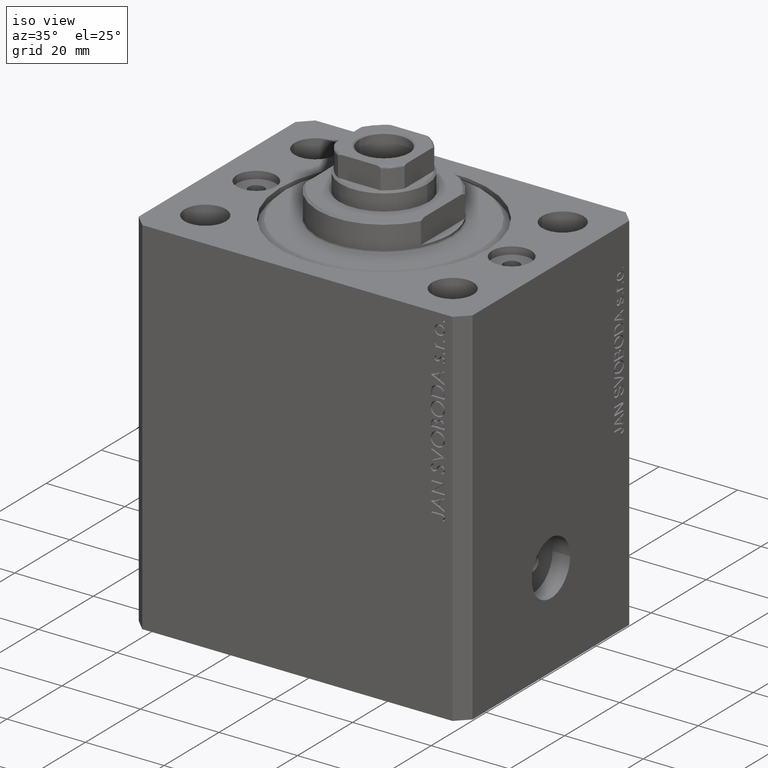
[diagram: clean part render]
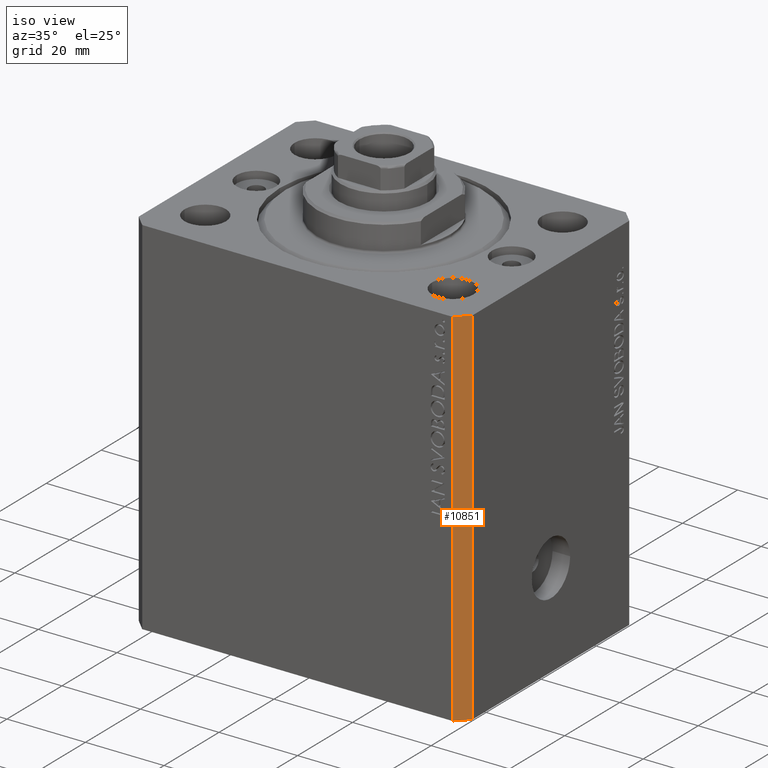
[diagram: same view with one face highlighted and labeled with its STEP entity id]
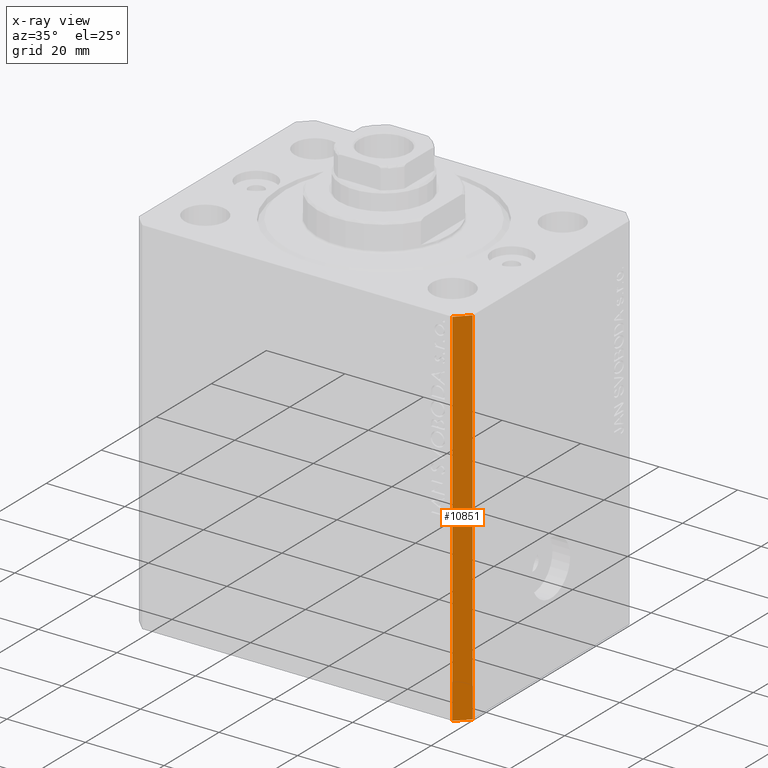
[diagram: x-ray of the same camera — body ghosted, the highlighted face saturated]
A machine part, iso view. The second image highlights one B-rep face of the part: STEP entity #10851.
The next image is the same camera in x-ray: the body ghosted, the highlighted face saturated — about 0% of this face is hidden behind the body in this view.
In plain terms, the highlighted planar face has unit normal (0.7071, -0.7071, 0).
Its self-contained STEP definition (entity closure, byte-faithful):
#1040 = CARTESIAN_POINT ( 'NONE',  ( 39.50000000000000711, -31.50000000000000000, 0.000000000000000000 ) ) ;
#1929 = CARTESIAN_POINT ( 'NONE',  ( 42.50000000000000711, -28.50000000000000355, -93.00000000000000000 ) ) ;
#2846 = VERTEX_POINT ( 'NONE', #1040 ) ;
#3564 = DIRECTION ( 'NONE',  ( 0.7071067811865483499, 0.7071067811865466846, 0.000000000000000000 ) ) ;
#4006 = CARTESIAN_POINT ( 'NONE',  ( 39.50000000000000711, -31.50000000000000000, -93.00000000000000000 ) ) ;
#5014 = EDGE_CURVE ( 'NONE', #13190, #15720, #37663, .T. ) ;
#6255 = VECTOR ( 'NONE', #3564, 1000.000000000000000 ) ;
#6938 = EDGE_CURVE ( 'NONE', #15720, #29717, #29527, .T. ) ;
#7047 = DIRECTION ( 'NONE',  ( 0.000000000000000000, 0.000000000000000000, 1.000000000000000000 ) ) ;
#10851 = ADVANCED_FACE ( 'NONE', ( #40338 ), #36767, .T. ) ;
#13190 = VERTEX_POINT ( 'NONE', #40546 ) ;
#14179 = VECTOR ( 'NONE', #42515, 1000.000000000000000 ) ;
#15062 = CARTESIAN_POINT ( 'NONE',  ( 42.50000000000000711, -28.50000000000000355, -93.00000000000000000 ) ) ;
#15720 = VERTEX_POINT ( 'NONE', #15062 ) ;
#16564 = DIRECTION ( 'NONE',  ( 0.7071067811865466846, -0.7071067811865483499, 0.000000000000000000 ) ) ;
#18628 = CARTESIAN_POINT ( 'NONE',  ( 42.50000000000000711, -28.50000000000000355, 0.000000000000000000 ) ) ;
#19541 = ORIENTED_EDGE ( 'NONE', *, *, #5014, .T. ) ;
#21389 = CARTESIAN_POINT ( 'NONE',  ( 39.50000000000000711, -31.50000000000000000, -93.00000000000000000 ) ) ;
#21394 = EDGE_CURVE ( 'NONE', #2846, #29717, #23231, .T. ) ;
#23231 = LINE ( 'NONE', #44289, #33033 ) ;
#24088 = EDGE_LOOP ( 'NONE', ( #42751, #26680, #19541, #35326 ) ) ;
#26680 = ORIENTED_EDGE ( 'NONE', *, *, #37760, .F. ) ;
#27038 = DIRECTION ( 'NONE',  ( 0.7071067811865483499, 0.7071067811865466846, 0.000000000000000000 ) ) ;
#29023 = VECTOR ( 'NONE', #7047, 1000.000000000000000 ) ;
#29527 = LINE ( 'NONE', #1929, #14179 ) ;
#29717 = VERTEX_POINT ( 'NONE', #18628 ) ;
#30346 = AXIS2_PLACEMENT_3D ( 'NONE', #44141, #16564, #37209 ) ;
#31498 = LINE ( 'NONE', #21389, #29023 ) ;
#33033 = VECTOR ( 'NONE', #27038, 1000.000000000000000 ) ;
#35326 = ORIENTED_EDGE ( 'NONE', *, *, #6938, .T. ) ;
#36767 = PLANE ( 'NONE',  #30346 ) ;
#37209 = DIRECTION ( 'NONE',  ( 0.7071067811865483499, 0.7071067811865466846, 0.000000000000000000 ) ) ;
#37663 = LINE ( 'NONE', #4006, #6255 ) ;
#37760 = EDGE_CURVE ( 'NONE', #13190, #2846, #31498, .T. ) ;
#40338 = FACE_OUTER_BOUND ( 'NONE', #24088, .T. ) ;
#40546 = CARTESIAN_POINT ( 'NONE',  ( 39.50000000000000711, -31.50000000000000000, -93.00000000000000000 ) ) ;
#42515 = DIRECTION ( 'NONE',  ( 0.000000000000000000, 0.000000000000000000, 1.000000000000000000 ) ) ;
#42751 = ORIENTED_EDGE ( 'NONE', *, *, #21394, .F. ) ;
#44141 = CARTESIAN_POINT ( 'NONE',  ( 39.50000000000000711, -31.50000000000000000, -93.00000000000000000 ) ) ;
#44289 = CARTESIAN_POINT ( 'NONE',  ( 39.50000000000000711, -31.50000000000000000, 0.000000000000000000 ) ) ;